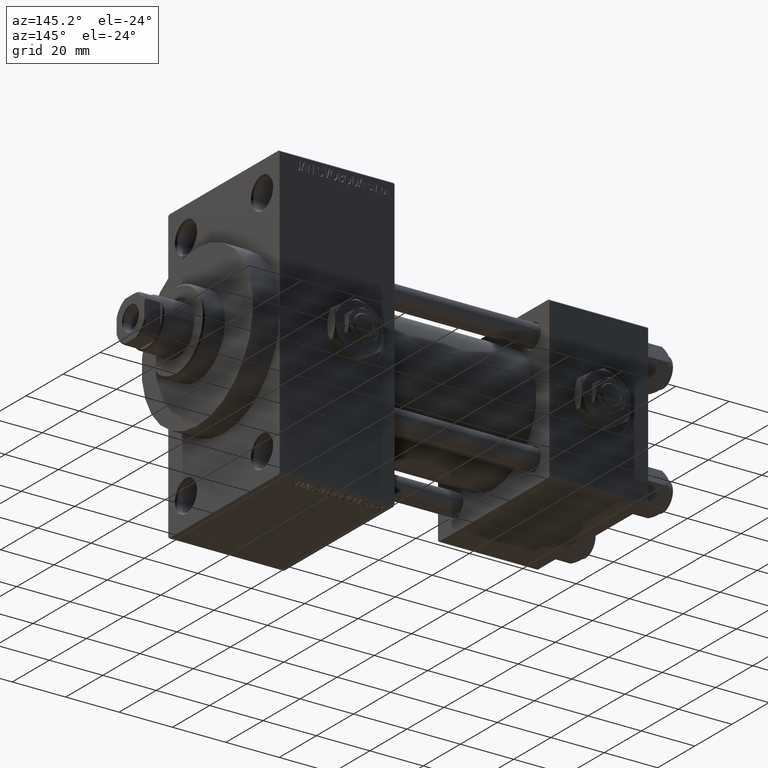
[diagram: clean part render]
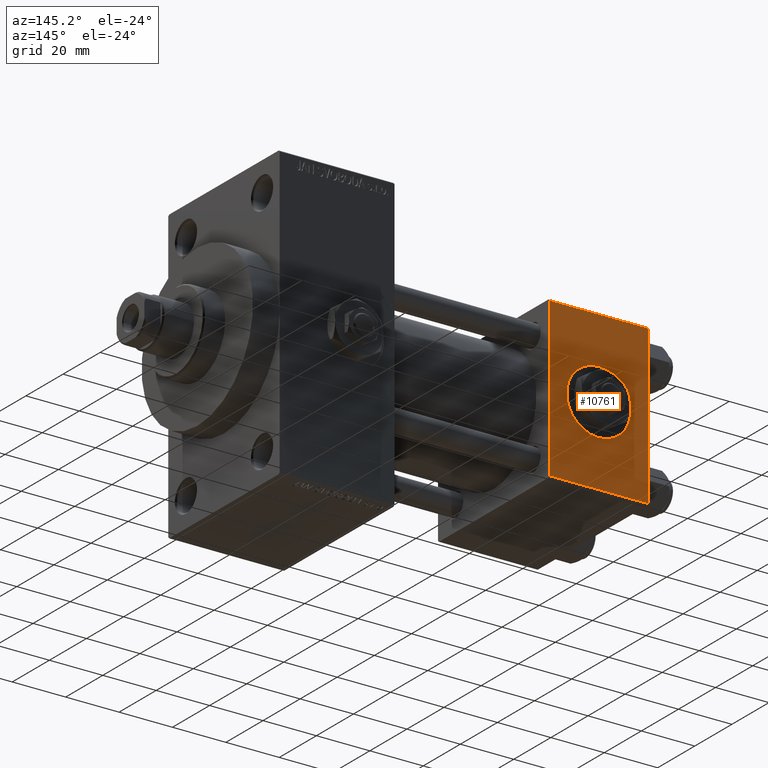
[diagram: same view with one face highlighted and labeled with its STEP entity id]
A machine part, auxiliary view. The second image highlights one B-rep face of the part: STEP entity #10761.
In plain terms, the highlighted planar face has unit normal (0, 1, 0).
Its self-contained STEP definition (entity closure, byte-faithful):
#212 = ORIENTED_EDGE ( 'NONE', *, *, #46505, .T. ) ;
#724 = CARTESIAN_POINT ( 'NONE',  ( 37.00000000000000000, 29.99999999999999289, 29.50000000000000000 ) ) ;
#1990 = CARTESIAN_POINT ( 'NONE',  ( 18.50000000000000000, 29.99999999999999289, -12.00000000000000178 ) ) ;
#4239 = DIRECTION ( 'NONE',  ( 0.000000000000000000, 1.000000000000000000, 0.000000000000000000 ) ) ;
#4392 = VERTEX_POINT ( 'NONE', #1990 ) ;
#4729 = DIRECTION ( 'NONE',  ( 0.000000000000000000, 0.000000000000000000, 1.000000000000000000 ) ) ;
#6357 = DIRECTION ( 'NONE',  ( 0.000000000000000000, 0.000000000000000000, -1.000000000000000000 ) ) ;
#7264 = VECTOR ( 'NONE', #21985, 1000.000000000000000 ) ;
#8106 = LINE ( 'NONE', #34742, #26357 ) ;
#10038 = CARTESIAN_POINT ( 'NONE',  ( 37.00000000000000000, 29.99999999999999289, 30.00000000000000000 ) ) ;
#10049 = VERTEX_POINT ( 'NONE', #724 ) ;
#10106 = CARTESIAN_POINT ( 'NONE',  ( 0.000000000000000000, 29.99999999999999289, 30.00000000000000000 ) ) ;
#10307 = VECTOR ( 'NONE', #21771, 1000.000000000000000 ) ;
#10524 = FACE_OUTER_BOUND ( 'NONE', #35459, .T. ) ;
#10761 = ADVANCED_FACE ( 'NONE', ( #29453, #10524 ), #14271, .T. ) ;
#11004 = DIRECTION ( 'NONE',  ( -0.000000000000000000, 1.000000000000000000, 0.000000000000000000 ) ) ;
#12597 = ORIENTED_EDGE ( 'NONE', *, *, #30848, .T. ) ;
#12870 = CIRCLE ( 'NONE', #24817, 12.00000000000000178 ) ;
#14271 = PLANE ( 'NONE',  #31583 ) ;
#17067 = VERTEX_POINT ( 'NONE', #30396 ) ;
#17762 = LINE ( 'NONE', #48139, #7264 ) ;
#18597 = CARTESIAN_POINT ( 'NONE',  ( 0.000000000000000000, 29.99999999999999289, 29.50000000000000000 ) ) ;
#18967 = DIRECTION ( 'NONE',  ( 0.000000000000000000, 0.000000000000000000, 1.000000000000000000 ) ) ;
#20540 = ORIENTED_EDGE ( 'NONE', *, *, #31039, .F. ) ;
#20729 = EDGE_CURVE ( 'NONE', #4392, #30617, #30069, .T. ) ;
#21771 = DIRECTION ( 'NONE',  ( 1.000000000000000000, 0.000000000000000000, 0.000000000000000000 ) ) ;
#21985 = DIRECTION ( 'NONE',  ( 0.000000000000000000, 0.000000000000000000, -1.000000000000000000 ) ) ;
#23682 = CARTESIAN_POINT ( 'NONE',  ( 18.50000000000000000, 29.99999999999999289, 0.000000000000000000 ) ) ;
#24817 = AXIS2_PLACEMENT_3D ( 'NONE', #27394, #26900, #18967 ) ;
#25419 = EDGE_CURVE ( 'NONE', #39436, #17067, #29035, .T. ) ;
#26199 = DIRECTION ( 'NONE',  ( 0.000000000000000000, -0.000000000000000000, 1.000000000000000000 ) ) ;
#26224 = VERTEX_POINT ( 'NONE', #47616 ) ;
#26357 = VECTOR ( 'NONE', #41738, 1000.000000000000000 ) ;
#26699 = EDGE_CURVE ( 'NONE', #39436, #10049, #43185, .T. ) ;
#26900 = DIRECTION ( 'NONE',  ( 0.000000000000000000, 1.000000000000000000, 0.000000000000000000 ) ) ;
#27394 = CARTESIAN_POINT ( 'NONE',  ( 18.50000000000000000, 29.99999999999999289, 0.000000000000000000 ) ) ;
#29035 = LINE ( 'NONE', #10106, #34870 ) ;
#29453 = FACE_BOUND ( 'NONE', #33330, .T. ) ;
#30069 = CIRCLE ( 'NONE', #41228, 12.00000000000000178 ) ;
#30396 = CARTESIAN_POINT ( 'NONE',  ( 0.000000000000000000, 29.99999999999999289, -29.50000000000000000 ) ) ;
#30617 = VERTEX_POINT ( 'NONE', #37804 ) ;
#30848 = EDGE_CURVE ( 'NONE', #10049, #26224, #17762, .T. ) ;
#31039 = EDGE_CURVE ( 'NONE', #30617, #4392, #12870, .T. ) ;
#31583 = AXIS2_PLACEMENT_3D ( 'NONE', #10038, #11004, #26199 ) ;
#33330 = EDGE_LOOP ( 'NONE', ( #20540, #36017 ) ) ;
#34742 = CARTESIAN_POINT ( 'NONE',  ( 37.00000000000000000, 29.99999999999999289, -29.50000000000000000 ) ) ;
#34839 = ORIENTED_EDGE ( 'NONE', *, *, #26699, .T. ) ;
#34870 = VECTOR ( 'NONE', #6357, 1000.000000000000000 ) ;
#35459 = EDGE_LOOP ( 'NONE', ( #12597, #212, #39935, #34839 ) ) ;
#36017 = ORIENTED_EDGE ( 'NONE', *, *, #20729, .F. ) ;
#37804 = CARTESIAN_POINT ( 'NONE',  ( 18.50000000000000000, 29.99999999999999289, 12.00000000000000178 ) ) ;
#39436 = VERTEX_POINT ( 'NONE', #18597 ) ;
#39935 = ORIENTED_EDGE ( 'NONE', *, *, #25419, .F. ) ;
#40915 = CARTESIAN_POINT ( 'NONE',  ( 37.00000000000000000, 29.99999999999999289, 29.50000000000000000 ) ) ;
#41228 = AXIS2_PLACEMENT_3D ( 'NONE', #23682, #4239, #4729 ) ;
#41738 = DIRECTION ( 'NONE',  ( -1.000000000000000000, 0.000000000000000000, 0.000000000000000000 ) ) ;
#43185 = LINE ( 'NONE', #40915, #10307 ) ;
#46505 = EDGE_CURVE ( 'NONE', #26224, #17067, #8106, .T. ) ;
#47616 = CARTESIAN_POINT ( 'NONE',  ( 37.00000000000000000, 29.99999999999999289, -29.50000000000000000 ) ) ;
#48139 = CARTESIAN_POINT ( 'NONE',  ( 37.00000000000000000, 29.99999999999999289, 30.00000000000000000 ) ) ;